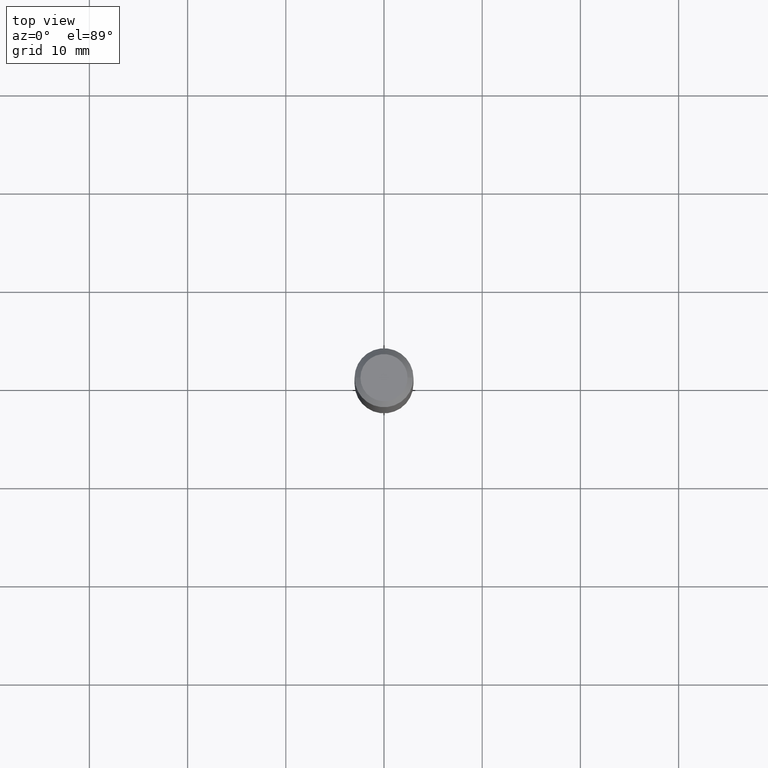
[diagram: clean part render]
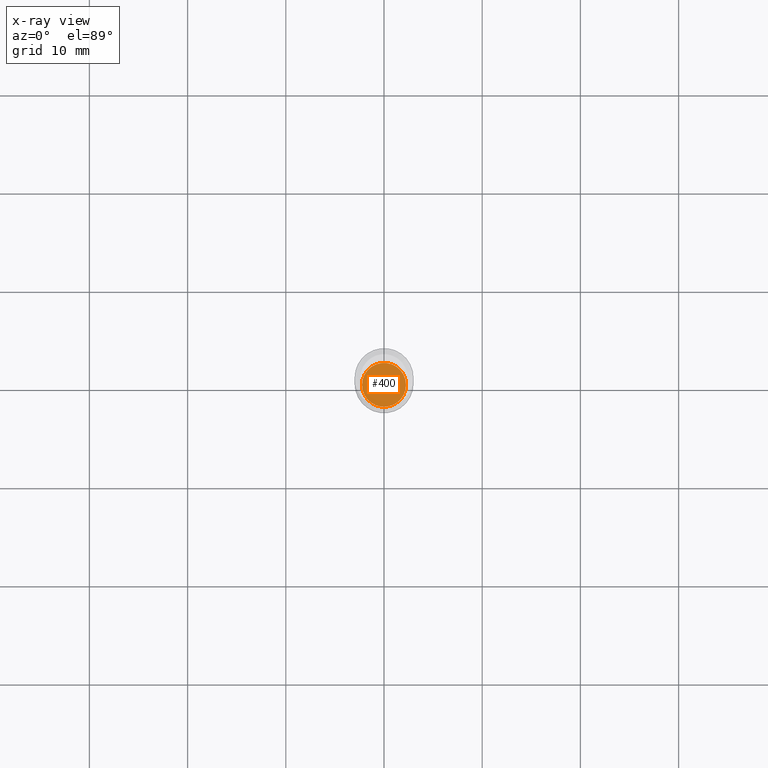
[diagram: x-ray — body ghosted, one internal face saturated and labeled with its STEP entity id]
A machine part, top view, then the same camera in x-ray: the body is ghosted and one INTERNAL B-rep face — a face not visible from any outside direction — is saturated and labeled: STEP entity #400.
In plain terms, the highlighted planar face has unit normal (-0, 0, 1).
Its self-contained STEP definition (entity closure, byte-faithful):
#17 = ORIENTED_EDGE ( 'NONE', *, *, #309, .F. ) ;
#32 = CARTESIAN_POINT ( 'NONE',  ( 0.08809999999999999776, -6.457494736190395714E-15, -1.673300000000000232 ) ) ;
#54 = CIRCLE ( 'NONE', #347, 0.08809999999999999776 ) ;
#64 = AXIS2_PLACEMENT_3D ( 'NONE', #89, #96, #202 ) ;
#79 = DIRECTION ( 'NONE',  ( 1.000000000000000000, -6.982962677686264344E-15, 0.000000000000000000 ) ) ;
#89 = CARTESIAN_POINT ( 'NONE',  ( 4.092002953389589284E-29, -5.842295724286235768E-15, -1.673300000000000232 ) ) ;
#91 = AXIS2_PLACEMENT_3D ( 'NONE', #373, #146, #79 ) ;
#96 = DIRECTION ( 'NONE',  ( -2.438088387897960049E-29, 3.491481338843145188E-15, 1.000000000000000000 ) ) ;
#100 = DIRECTION ( 'NONE',  ( 1.000000000000000000, -6.982962677686264344E-15, 0.000000000000000000 ) ) ;
#129 = FACE_OUTER_BOUND ( 'NONE', #421, .T. ) ;
#146 = DIRECTION ( 'NONE',  ( -2.445468806185136597E-29, 3.491481338843145583E-15, 1.000000000000000000 ) ) ;
#169 = VERTEX_POINT ( 'NONE', #32 ) ;
#174 = CARTESIAN_POINT ( 'NONE',  ( 4.092002953389589284E-29, -5.842295724286235768E-15, -1.673300000000000232 ) ) ;
#202 = DIRECTION ( 'NONE',  ( 1.000000000000000000, -6.982962677686265922E-15, 4.876176775795935793E-29 ) ) ;
#237 = EDGE_CURVE ( 'NONE', #417, #169, #54, .T. ) ;
#239 = CARTESIAN_POINT ( 'NONE',  ( -0.08809999999999999776, -5.213658346907477404E-15, -1.673300000000000232 ) ) ;
#309 = EDGE_CURVE ( 'NONE', #169, #417, #340, .T. ) ;
#331 = DIRECTION ( 'NONE',  ( -2.445468806185136597E-29, 3.491481338843145583E-15, 1.000000000000000000 ) ) ;
#340 = CIRCLE ( 'NONE', #91, 0.08809999999999999776 ) ;
#347 = AXIS2_PLACEMENT_3D ( 'NONE', #174, #331, #100 ) ;
#373 = CARTESIAN_POINT ( 'NONE',  ( 4.092002953389589284E-29, -5.842295724286235768E-15, -1.673300000000000232 ) ) ;
#400 = ADVANCED_FACE ( 'NONE', ( #129 ), #429, .F. ) ;
#417 = VERTEX_POINT ( 'NONE', #239 ) ;
#421 = EDGE_LOOP ( 'NONE', ( #17, #438 ) ) ;
#429 = PLANE ( 'NONE',  #64 ) ;
#438 = ORIENTED_EDGE ( 'NONE', *, *, #237, .F. ) ;